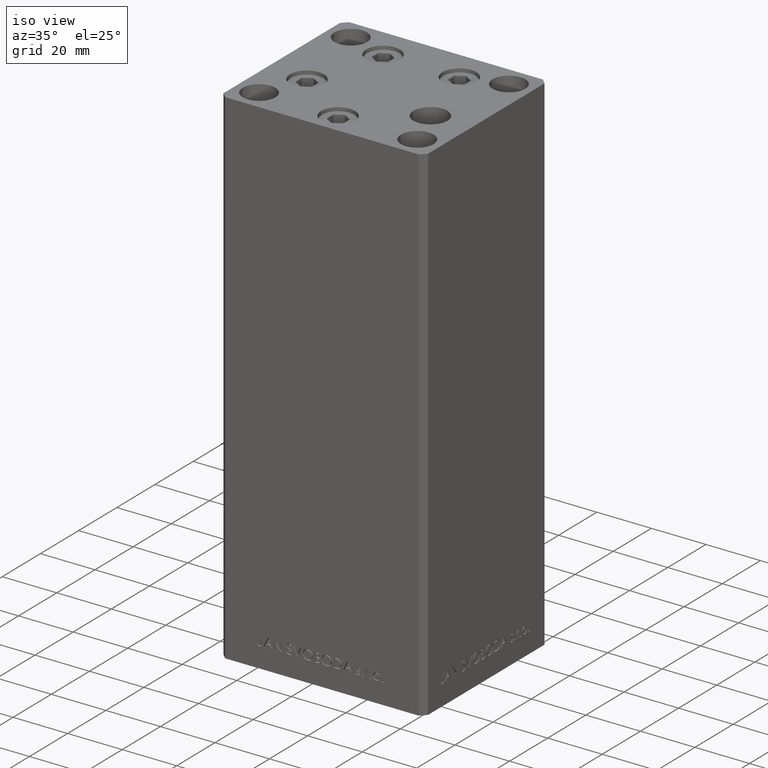
[diagram: clean part render]
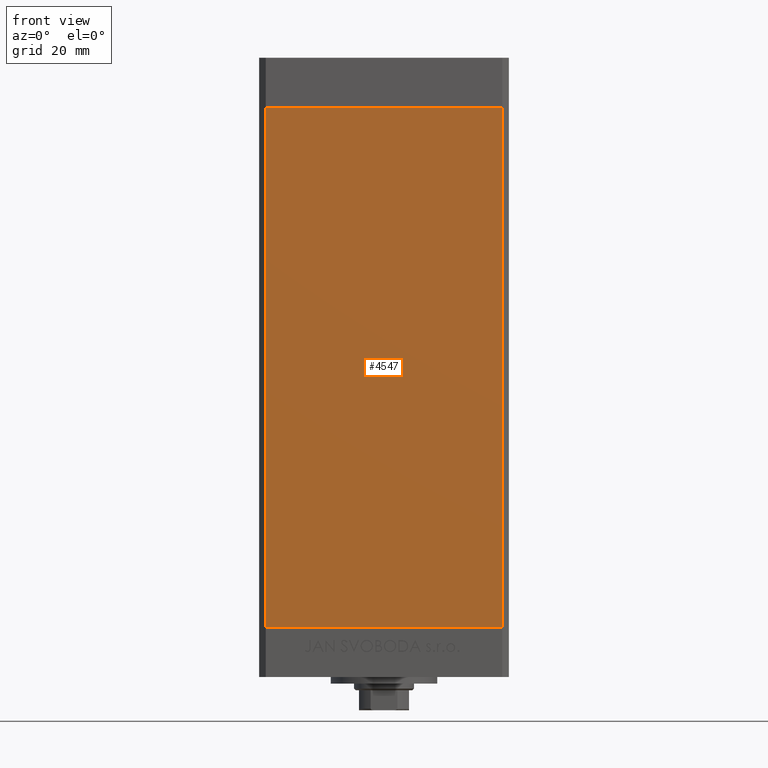
[diagram: tour spotlight — one face highlighted and labeled with its STEP entity id]
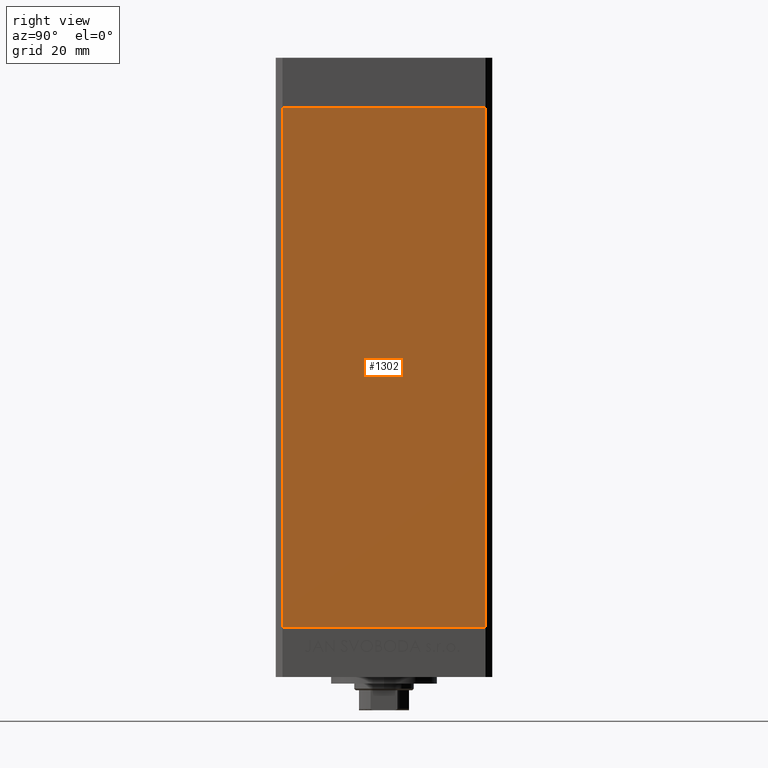
[diagram: tour spotlight — one face highlighted and labeled with its STEP entity id]
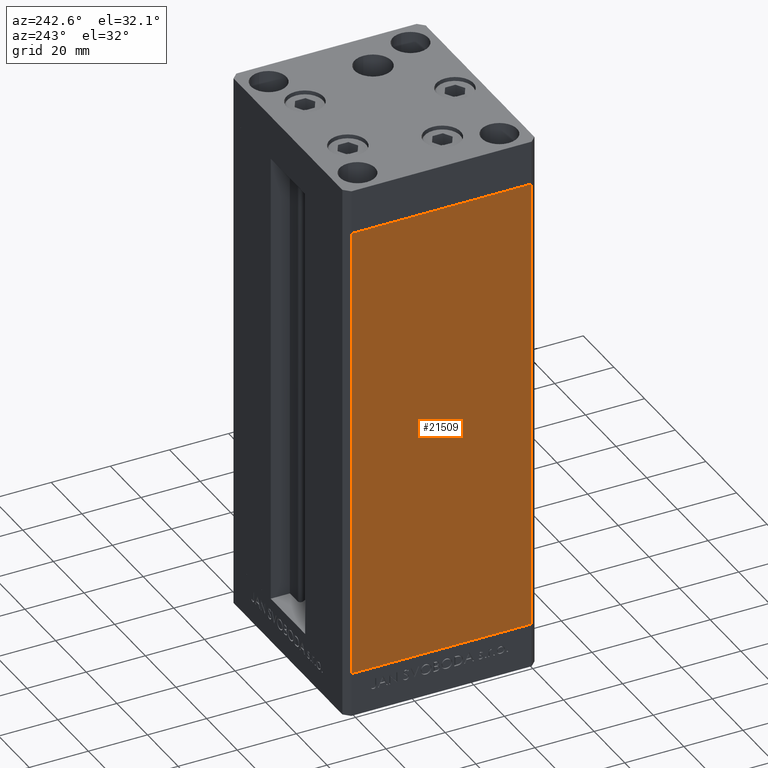
[diagram: tour spotlight — one face highlighted and labeled with its STEP entity id]
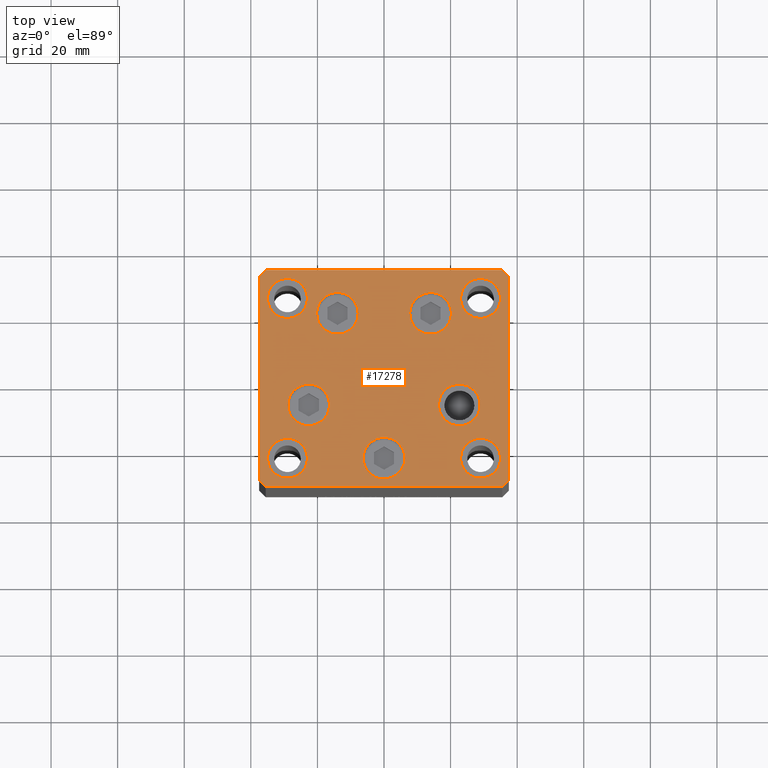
[diagram: tour spotlight — one face highlighted and labeled with its STEP entity id]
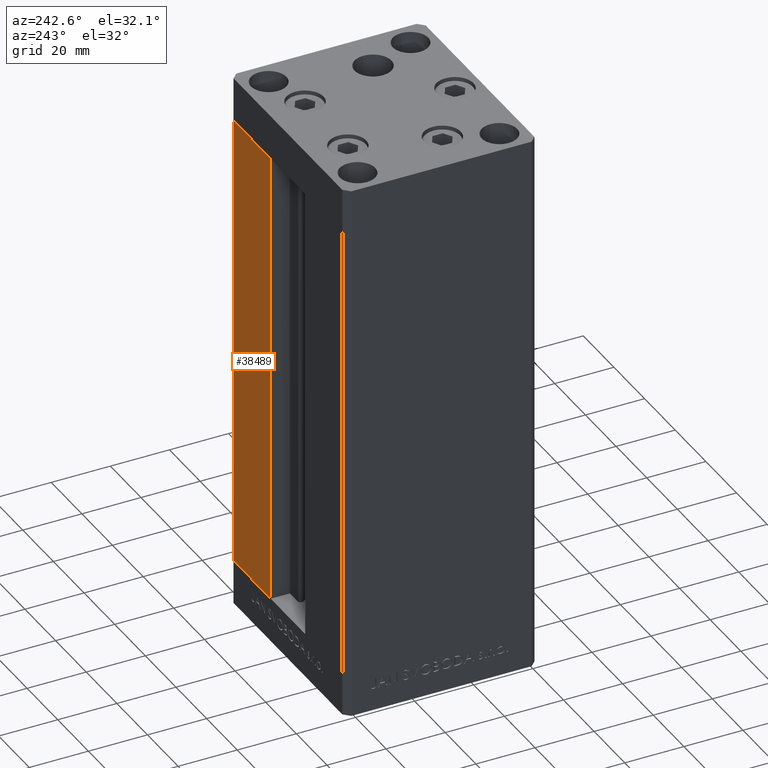
[diagram: tour spotlight — one face highlighted and labeled with its STEP entity id]
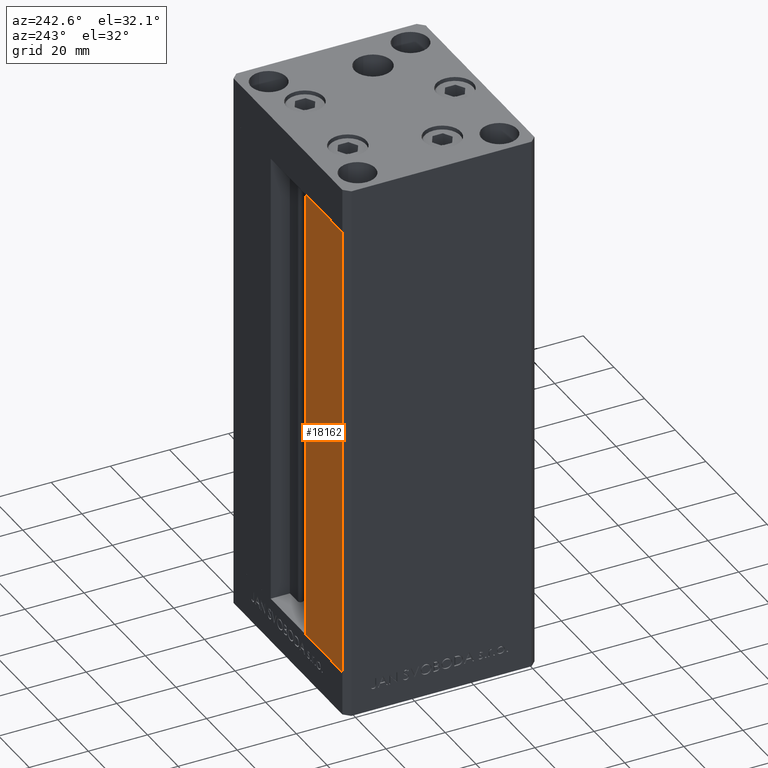
[diagram: tour spotlight — one face highlighted and labeled with its STEP entity id]
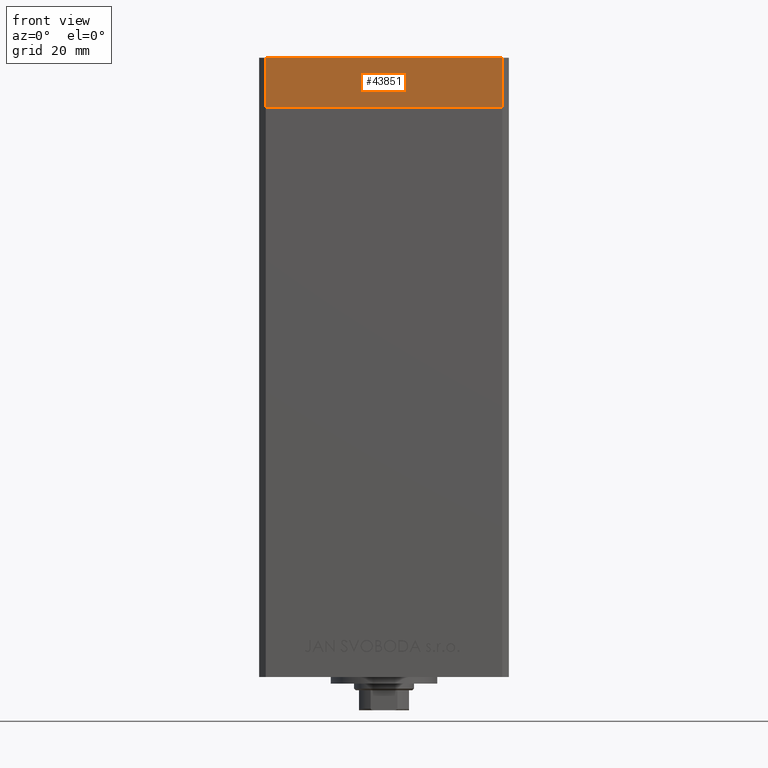
[diagram: tour spotlight — one face highlighted and labeled with its STEP entity id]
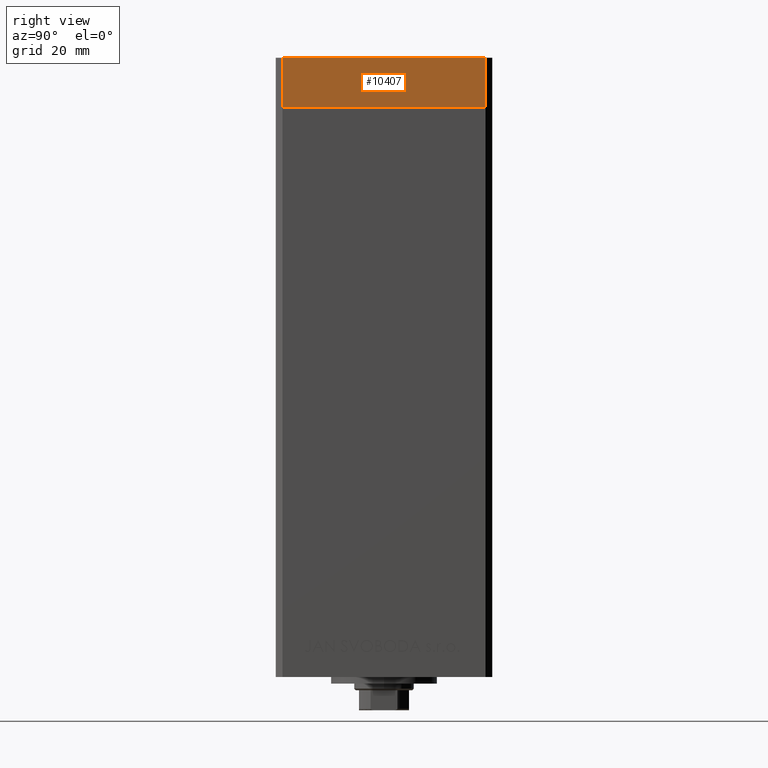
[diagram: tour spotlight — one face highlighted and labeled with its STEP entity id]
A machine part: a face-by-face anatomy tour. The part has 1159 B-rep faces; the first image is the clean iso view, then the 8 largest visible faces are spotlighted one at a time (largest first), each with its STEP entity span.

Face 1 — front view, entity #4547. In plain terms, the highlighted planar face has unit normal (0, 1, 0).
Definition (entity closure, byte-faithful):
#1800 = CARTESIAN_POINT ( 'NONE',  ( 35.49999999999999289, -32.50000000000000000, 0.000000000000000000 ) ) ;
#1874 = DIRECTION ( 'NONE',  ( 1.000000000000000000, 0.000000000000000000, 0.000000000000000000 ) ) ;
#1918 = CARTESIAN_POINT ( 'NONE',  ( -35.49999999999999289, -32.50000000000000000, 0.000000000000000000 ) ) ;
#2827 = EDGE_CURVE ( 'NONE', #21533, #44352, #17820, .T. ) ;
#2966 = LINE ( 'NONE', #44300, #48000 ) ;
#4547 = ADVANCED_FACE ( 'NONE', ( #13029 ), #47908, .F. ) ;
#5237 = EDGE_CURVE ( 'NONE', #15546, #21533, #42951, .T. ) ;
#5620 = DIRECTION ( 'NONE',  ( 0.000000000000000000, -0.000000000000000000, 1.000000000000000000 ) ) ;
#6499 = EDGE_LOOP ( 'NONE', ( #28641, #35602, #13437, #30597 ) ) ;
#8785 = EDGE_CURVE ( 'NONE', #15546, #24158, #2966, .T. ) ;
#10675 = EDGE_CURVE ( 'NONE', #24158, #44352, #26936, .T. ) ;
#12653 = CARTESIAN_POINT ( 'NONE',  ( -35.49999999999999289, -32.50000000000000000, 156.0000000000000000 ) ) ;
#13029 = FACE_OUTER_BOUND ( 'NONE', #6499, .T. ) ;
#13437 = ORIENTED_EDGE ( 'NONE', *, *, #5237, .F. ) ;
#14121 = CARTESIAN_POINT ( 'NONE',  ( 35.49999999999999289, -32.50000000000000000, 156.0000000000000000 ) ) ;
#15546 = VERTEX_POINT ( 'NONE', #12653 ) ;
#17820 = LINE ( 'NONE', #14121, #32260 ) ;
#19273 = DIRECTION ( 'NONE',  ( 1.000000000000000000, 0.000000000000000000, 0.000000000000000000 ) ) ;
#19763 = CARTESIAN_POINT ( 'NONE',  ( -35.49999999999999289, -32.50000000000000000, 0.000000000000000000 ) ) ;
#20659 = CARTESIAN_POINT ( 'NONE',  ( -35.49999999999999289, -32.50000000000000000, 156.0000000000000000 ) ) ;
#21533 = VERTEX_POINT ( 'NONE', #41022 ) ;
#24158 = VERTEX_POINT ( 'NONE', #1918 ) ;
#25948 = DIRECTION ( 'NONE',  ( -0.000000000000000000, -0.000000000000000000, -1.000000000000000000 ) ) ;
#26936 = LINE ( 'NONE', #19763, #38566 ) ;
#28641 = ORIENTED_EDGE ( 'NONE', *, *, #10675, .T. ) ;
#29039 = VECTOR ( 'NONE', #1874, 1000.000000000000000 ) ;
#30597 = ORIENTED_EDGE ( 'NONE', *, *, #8785, .T. ) ;
#32260 = VECTOR ( 'NONE', #32915, 1000.000000000000000 ) ;
#32915 = DIRECTION ( 'NONE',  ( -0.000000000000000000, -0.000000000000000000, -1.000000000000000000 ) ) ;
#35365 = AXIS2_PLACEMENT_3D ( 'NONE', #46936, #39512, #5620 ) ;
#35602 = ORIENTED_EDGE ( 'NONE', *, *, #2827, .F. ) ;
#38566 = VECTOR ( 'NONE', #19273, 1000.000000000000000 ) ;
#39512 = DIRECTION ( 'NONE',  ( 0.000000000000000000, 1.000000000000000000, 0.000000000000000000 ) ) ;
#41022 = CARTESIAN_POINT ( 'NONE',  ( 35.49999999999999289, -32.50000000000000000, 156.0000000000000000 ) ) ;
#42951 = LINE ( 'NONE', #20659, #29039 ) ;
#44300 = CARTESIAN_POINT ( 'NONE',  ( -35.49999999999999289, -32.50000000000000000, 156.0000000000000000 ) ) ;
#44352 = VERTEX_POINT ( 'NONE', #1800 ) ;
#46936 = CARTESIAN_POINT ( 'NONE',  ( -35.49999999999999289, -32.50000000000000000, 156.0000000000000000 ) ) ;
#47908 = PLANE ( 'NONE',  #35365 ) ;
#48000 = VECTOR ( 'NONE', #25948, 1000.000000000000000 ) ;

Face 2 — right view, entity #1302. In plain terms, the highlighted planar face has unit normal (1, -0, 0).
Definition (entity closure, byte-faithful):
#767 = LINE ( 'NONE', #4238, #42817 ) ;
#1302 = ADVANCED_FACE ( 'NONE', ( #36593 ), #37315, .T. ) ;
#4238 = CARTESIAN_POINT ( 'NONE',  ( 37.50000000000000711, 30.50000000000000000, 156.0000000000000000 ) ) ;
#4458 = CARTESIAN_POINT ( 'NONE',  ( 37.49999999999999289, -30.50000000000000000, 156.0000000000000000 ) ) ;
#5281 = CARTESIAN_POINT ( 'NONE',  ( 37.49999999999999289, -30.50000000000000000, 0.000000000000000000 ) ) ;
#6573 = VECTOR ( 'NONE', #15343, 1000.000000000000000 ) ;
#6875 = DIRECTION ( 'NONE',  ( 1.000000000000000000, -2.275047181608927644E-16, 0.000000000000000000 ) ) ;
#7264 = DIRECTION ( 'NONE',  ( -2.275047181608927644E-16, -1.000000000000000000, 0.000000000000000000 ) ) ;
#8632 = VERTEX_POINT ( 'NONE', #24003 ) ;
#9338 = VERTEX_POINT ( 'NONE', #28768 ) ;
#9456 = LINE ( 'NONE', #32216, #34028 ) ;
#12016 = VERTEX_POINT ( 'NONE', #15253 ) ;
#12406 = VERTEX_POINT ( 'NONE', #5281 ) ;
#15253 = CARTESIAN_POINT ( 'NONE',  ( 37.49999999999999289, -30.50000000000000000, 156.0000000000000000 ) ) ;
#15343 = DIRECTION ( 'NONE',  ( -0.000000000000000000, -0.000000000000000000, -1.000000000000000000 ) ) ;
#15848 = DIRECTION ( 'NONE',  ( -0.000000000000000000, -0.000000000000000000, -1.000000000000000000 ) ) ;
#16083 = LINE ( 'NONE', #4458, #6573 ) ;
#18005 = DIRECTION ( 'NONE',  ( 2.275047181608927644E-16, 1.000000000000000000, 0.000000000000000000 ) ) ;
#23262 = EDGE_CURVE ( 'NONE', #9338, #8632, #767, .T. ) ;
#23715 = ORIENTED_EDGE ( 'NONE', *, *, #44336, .T. ) ;
#24003 = CARTESIAN_POINT ( 'NONE',  ( 37.50000000000000711, 30.50000000000000000, 0.000000000000000000 ) ) ;
#27466 = EDGE_CURVE ( 'NONE', #12016, #12406, #16083, .T. ) ;
#28768 = CARTESIAN_POINT ( 'NONE',  ( 37.50000000000000711, 30.50000000000000000, 156.0000000000000000 ) ) ;
#29840 = ORIENTED_EDGE ( 'NONE', *, *, #27466, .T. ) ;
#32216 = CARTESIAN_POINT ( 'NONE',  ( 37.50000000000000711, 30.50000000000000000, 156.0000000000000000 ) ) ;
#32488 = ORIENTED_EDGE ( 'NONE', *, *, #34269, .F. ) ;
#33588 = CARTESIAN_POINT ( 'NONE',  ( 37.50000000000000711, 30.50000000000000000, 156.0000000000000000 ) ) ;
#34028 = VECTOR ( 'NONE', #46823, 1000.000000000000000 ) ;
#34269 = EDGE_CURVE ( 'NONE', #8632, #12406, #37202, .T. ) ;
#36593 = FACE_OUTER_BOUND ( 'NONE', #39290, .T. ) ;
#36698 = VECTOR ( 'NONE', #7264, 1000.000000000000000 ) ;
#36728 = CARTESIAN_POINT ( 'NONE',  ( 37.50000000000000711, 30.50000000000000000, 0.000000000000000000 ) ) ;
#37202 = LINE ( 'NONE', #36728, #36698 ) ;
#37315 = PLANE ( 'NONE',  #40918 ) ;
#39290 = EDGE_LOOP ( 'NONE', ( #32488, #41556, #23715, #29840 ) ) ;
#40918 = AXIS2_PLACEMENT_3D ( 'NONE', #33588, #6875, #18005 ) ;
#41556 = ORIENTED_EDGE ( 'NONE', *, *, #23262, .F. ) ;
#42817 = VECTOR ( 'NONE', #15848, 1000.000000000000000 ) ;
#44336 = EDGE_CURVE ( 'NONE', #9338, #12016, #9456, .T. ) ;
#46823 = DIRECTION ( 'NONE',  ( -2.275047181608927644E-16, -1.000000000000000000, 0.000000000000000000 ) ) ;

Face 3 — auxiliary view, entity #21509. In plain terms, the highlighted planar face has unit normal (1, 0, 0).
Definition (entity closure, byte-faithful):
#643 = CARTESIAN_POINT ( 'NONE',  ( -37.50000000000000711, 30.50000000000000000, 156.0000000000000000 ) ) ;
#985 = CARTESIAN_POINT ( 'NONE',  ( -37.49999999999999289, -30.50000000000000000, 156.0000000000000000 ) ) ;
#2535 = CARTESIAN_POINT ( 'NONE',  ( -37.50000000000000711, 30.50000000000000000, 0.000000000000000000 ) ) ;
#4201 = LINE ( 'NONE', #985, #27714 ) ;
#4476 = VERTEX_POINT ( 'NONE', #27884 ) ;
#4745 = VERTEX_POINT ( 'NONE', #45424 ) ;
#4853 = DIRECTION ( 'NONE',  ( 2.275047181608927644E-16, -1.000000000000000000, 0.000000000000000000 ) ) ;
#5172 = EDGE_CURVE ( 'NONE', #19565, #4745, #19425, .T. ) ;
#6062 = LINE ( 'NONE', #12742, #11987 ) ;
#6156 = DIRECTION ( 'NONE',  ( -2.275047181608927644E-16, 1.000000000000000000, 0.000000000000000000 ) ) ;
#10817 = FACE_OUTER_BOUND ( 'NONE', #35057, .T. ) ;
#11987 = VECTOR ( 'NONE', #35035, 1000.000000000000000 ) ;
#12742 = CARTESIAN_POINT ( 'NONE',  ( -37.50000000000000711, 30.50000000000000000, 156.0000000000000000 ) ) ;
#12835 = ORIENTED_EDGE ( 'NONE', *, *, #26880, .T. ) ;
#14626 = LINE ( 'NONE', #2535, #44289 ) ;
#15004 = CARTESIAN_POINT ( 'NONE',  ( -37.50000000000000711, 30.50000000000000000, 156.0000000000000000 ) ) ;
#18248 = DIRECTION ( 'NONE',  ( 1.000000000000000000, 2.275047181608927644E-16, -0.000000000000000000 ) ) ;
#18475 = ORIENTED_EDGE ( 'NONE', *, *, #43618, .T. ) ;
#19425 = LINE ( 'NONE', #643, #23479 ) ;
#19565 = VERTEX_POINT ( 'NONE', #15004 ) ;
#21199 = EDGE_CURVE ( 'NONE', #4745, #4476, #4201, .T. ) ;
#21317 = DIRECTION ( 'NONE',  ( 2.275047181608927644E-16, -1.000000000000000000, 0.000000000000000000 ) ) ;
#21509 = ADVANCED_FACE ( 'NONE', ( #10817 ), #40771, .F. ) ;
#23472 = ORIENTED_EDGE ( 'NONE', *, *, #5172, .F. ) ;
#23479 = VECTOR ( 'NONE', #4853, 1000.000000000000000 ) ;
#26880 = EDGE_CURVE ( 'NONE', #19565, #27081, #6062, .T. ) ;
#27081 = VERTEX_POINT ( 'NONE', #34221 ) ;
#27714 = VECTOR ( 'NONE', #41562, 1000.000000000000000 ) ;
#27884 = CARTESIAN_POINT ( 'NONE',  ( -37.49999999999999289, -30.50000000000000000, 0.000000000000000000 ) ) ;
#34221 = CARTESIAN_POINT ( 'NONE',  ( -37.50000000000000711, 30.50000000000000000, 0.000000000000000000 ) ) ;
#35035 = DIRECTION ( 'NONE',  ( -0.000000000000000000, -0.000000000000000000, -1.000000000000000000 ) ) ;
#35057 = EDGE_LOOP ( 'NONE', ( #18475, #35601, #23472, #12835 ) ) ;
#35601 = ORIENTED_EDGE ( 'NONE', *, *, #21199, .F. ) ;
#40048 = CARTESIAN_POINT ( 'NONE',  ( -37.50000000000000711, 30.50000000000000000, 156.0000000000000000 ) ) ;
#40771 = PLANE ( 'NONE',  #44341 ) ;
#41562 = DIRECTION ( 'NONE',  ( -0.000000000000000000, -0.000000000000000000, -1.000000000000000000 ) ) ;
#43618 = EDGE_CURVE ( 'NONE', #27081, #4476, #14626, .T. ) ;
#44289 = VECTOR ( 'NONE', #21317, 1000.000000000000000 ) ;
#44341 = AXIS2_PLACEMENT_3D ( 'NONE', #40048, #18248, #6156 ) ;
#45424 = CARTESIAN_POINT ( 'NONE',  ( -37.49999999999999289, -30.50000000000000000, 156.0000000000000000 ) ) ;

Face 4 — top view, entity #17278. In plain terms, the highlighted planar face has unit normal (0, 0, 1).
Definition (entity closure, byte-faithful):
#153 = ORIENTED_EDGE ( 'NONE', *, *, #41121, .F. ) ;
#272 = EDGE_CURVE ( 'NONE', #9635, #35652, #22664, .T. ) ;
#481 = CARTESIAN_POINT ( 'NONE',  ( -37.49999999999998579, -30.50000000000001421, 0.000000000000000000 ) ) ;
#574 = CIRCLE ( 'NONE', #2955, 6.250000000000001776 ) ;
#1024 = AXIS2_PLACEMENT_3D ( 'NONE', #3784, #18858, #41146 ) ;
#1362 = AXIS2_PLACEMENT_3D ( 'NONE', #2921, #29390, #26151 ) ;
#2127 = VERTEX_POINT ( 'NONE', #21053 ) ;
#2206 = CIRCLE ( 'NONE', #19544, 6.250000000000000000 ) ;
#2354 = ORIENTED_EDGE ( 'NONE', *, *, #272, .T. ) ;
#2501 = CARTESIAN_POINT ( 'NONE',  ( -7.741068579633227031, 19.49999999999999645, 0.000000000000000000 ) ) ;
#2624 = CARTESIAN_POINT ( 'NONE',  ( 23.00000000000001066, -23.99999999999999289, 0.000000000000000000 ) ) ;
#2730 = DIRECTION ( 'NONE',  ( 1.000000000000000000, 0.000000000000000000, 0.000000000000000000 ) ) ;
#2809 = ORIENTED_EDGE ( 'NONE', *, *, #28008, .T. ) ;
#2921 = CARTESIAN_POINT ( 'NONE',  ( -13.99106857963322703, 19.49999999999999645, 0.000000000000000000 ) ) ;
#2955 = AXIS2_PLACEMENT_3D ( 'NONE', #44563, #3474, #30419 ) ;
#2990 = VERTEX_POINT ( 'NONE', #5186 ) ;
#3189 = PLANE ( 'NONE',  #29175 ) ;
#3236 = EDGE_LOOP ( 'NONE', ( #32721, #5008 ) ) ;
#3275 = EDGE_CURVE ( 'NONE', #38690, #3716, #3800, .T. ) ;
#3474 = DIRECTION ( 'NONE',  ( 0.000000000000000000, -0.000000000000000000, -1.000000000000000000 ) ) ;
#3669 = FACE_BOUND ( 'NONE', #14991, .T. ) ;
#3716 = VERTEX_POINT ( 'NONE', #21779 ) ;
#3784 = CARTESIAN_POINT ( 'NONE',  ( 29.00000000000001066, -23.99999999999999289, 0.000000000000000000 ) ) ;
#3800 = CIRCLE ( 'NONE', #30667, 6.250000000000000000 ) ;
#4153 = LINE ( 'NONE', #18502, #47623 ) ;
#4156 = FACE_OUTER_BOUND ( 'NONE', #23304, .T. ) ;
#4196 = CARTESIAN_POINT ( 'NONE',  ( 7.741068579633223479, 19.50000000000000000, 0.000000000000000000 ) ) ;
#4229 = DIRECTION ( 'NONE',  ( 4.550094363217855288E-16, -1.000000000000000000, 0.000000000000000000 ) ) ;
#4471 = DIRECTION ( 'NONE',  ( 1.000000000000000000, 0.000000000000000000, 0.000000000000000000 ) ) ;
#4685 = AXIS2_PLACEMENT_3D ( 'NONE', #18031, #6190, #2730 ) ;
#4943 = EDGE_LOOP ( 'NONE', ( #2809, #46846 ) ) ;
#5008 = ORIENTED_EDGE ( 'NONE', *, *, #17722, .F. ) ;
#5055 = CARTESIAN_POINT ( 'NONE',  ( -35.49999999999998579, -32.50000000000001421, 0.000000000000000000 ) ) ;
#5186 = CARTESIAN_POINT ( 'NONE',  ( -28.87741699796952233, -8.000000000000005329, 0.000000000000000000 ) ) ;
#5587 = DIRECTION ( 'NONE',  ( 0.000000000000000000, -0.000000000000000000, -1.000000000000000000 ) ) ;
#5617 = VERTEX_POINT ( 'NONE', #30285 ) ;
#5858 = VERTEX_POINT ( 'NONE', #33326 ) ;
#6190 = DIRECTION ( 'NONE',  ( 0.000000000000000000, 0.000000000000000000, 1.000000000000000000 ) ) ;
#6216 = LINE ( 'NONE', #27738, #35395 ) ;
#6297 = CIRCLE ( 'NONE', #48177, 6.000000000000005329 ) ;
#6444 = EDGE_CURVE ( 'NONE', #45996, #5858, #31328, .T. ) ;
#6586 = ORIENTED_EDGE ( 'NONE', *, *, #8454, .F. ) ;
#6762 = ORIENTED_EDGE ( 'NONE', *, *, #24481, .T. ) ;
#6862 = VERTEX_POINT ( 'NONE', #33628 ) ;
#6865 = CARTESIAN_POINT ( 'NONE',  ( 6.250000000000002665, -24.00000000000000000, 0.000000000000000000 ) ) ;
#6958 = CARTESIAN_POINT ( 'NONE',  ( -23.00000000000001421, -23.99999999999999289, 0.000000000000000000 ) ) ;
#7143 = ORIENTED_EDGE ( 'NONE', *, *, #3275, .T. ) ;
#7808 = DIRECTION ( 'NONE',  ( 1.000000000000000000, 0.000000000000000000, 0.000000000000000000 ) ) ;
#7833 = EDGE_CURVE ( 'NONE', #6862, #30452, #31310, .T. ) ;
#7920 = DIRECTION ( 'NONE',  ( 1.000000000000000000, 0.000000000000000000, 0.000000000000000000 ) ) ;
#8201 = ORIENTED_EDGE ( 'NONE', *, *, #40747, .F. ) ;
#8454 = EDGE_CURVE ( 'NONE', #40731, #47988, #9253, .T. ) ;
#8507 = DIRECTION ( 'NONE',  ( 0.000000000000000000, -0.000000000000000000, -1.000000000000000000 ) ) ;
#8572 = VERTEX_POINT ( 'NONE', #34664 ) ;
#8762 = CARTESIAN_POINT ( 'NONE',  ( 37.49999999999992184, 30.50000000000001066, 0.000000000000000000 ) ) ;
#8814 = EDGE_CURVE ( 'NONE', #30121, #5617, #13851, .T. ) ;
#9253 = CIRCLE ( 'NONE', #40063, 5.999999999999998224 ) ;
#9269 = EDGE_LOOP ( 'NONE', ( #6586, #153 ) ) ;
#9396 = VECTOR ( 'NONE', #21642, 999.9999999999998863 ) ;
#9635 = VERTEX_POINT ( 'NONE', #2501 ) ;
#10143 = DIRECTION ( 'NONE',  ( 0.7071067811865487940, 0.7071067811865463515, 0.000000000000000000 ) ) ;
#10271 = VERTEX_POINT ( 'NONE', #21161 ) ;
#10422 = CIRCLE ( 'NONE', #28608, 5.999999999999998224 ) ;
#10558 = EDGE_CURVE ( 'NONE', #5617, #35109, #6216, .T. ) ;
#10970 = CARTESIAN_POINT ( 'NONE',  ( 13.99106857963322348, 19.50000000000000000, 0.000000000000000000 ) ) ;
#11079 = ORIENTED_EDGE ( 'NONE', *, *, #45328, .F. ) ;
#11572 = AXIS2_PLACEMENT_3D ( 'NONE', #35221, #31506, #12687 ) ;
#11636 = VECTOR ( 'NONE', #47596, 1000.000000000000000 ) ;
#12304 = EDGE_CURVE ( 'NONE', #35109, #6862, #36509, .T. ) ;
#12360 = CARTESIAN_POINT ( 'NONE',  ( 2.939152317953647500E-15, -24.00000000000000000, 0.000000000000000000 ) ) ;
#12557 = EDGE_LOOP ( 'NONE', ( #31912, #22378 ) ) ;
#12642 = DIRECTION ( 'NONE',  ( -1.478780668045802821E-15, 1.000000000000000000, 0.000000000000000000 ) ) ;
#12687 = DIRECTION ( 'NONE',  ( 1.000000000000000000, 0.000000000000000000, 0.000000000000000000 ) ) ;
#12847 = DIRECTION ( 'NONE',  ( 1.000000000000000000, 0.000000000000000000, 0.000000000000000000 ) ) ;
#13258 = EDGE_CURVE ( 'NONE', #35652, #9635, #2206, .T. ) ;
#13359 = EDGE_CURVE ( 'NONE', #8572, #30121, #32246, .T. ) ;
#13405 = DIRECTION ( 'NONE',  ( 0.000000000000000000, 0.000000000000000000, 1.000000000000000000 ) ) ;
#13851 = LINE ( 'NONE', #28939, #40868 ) ;
#13975 = CARTESIAN_POINT ( 'NONE',  ( 37.49999999999992184, 30.50000000000001066, 0.000000000000000000 ) ) ;
#14179 = CIRCLE ( 'NONE', #4685, 5.999999999999998224 ) ;
#14755 = CARTESIAN_POINT ( 'NONE',  ( -29.00000000000001066, -23.99999999999999289, 0.000000000000000000 ) ) ;
#14991 = EDGE_LOOP ( 'NONE', ( #35371, #40122 ) ) ;
#15031 = CARTESIAN_POINT ( 'NONE',  ( 2.939152317953647500E-15, -24.00000000000000000, 0.000000000000000000 ) ) ;
#15037 = CARTESIAN_POINT ( 'NONE',  ( 0.000000000000000000, 0.000000000000000000, 0.000000000000000000 ) ) ;
#15090 = AXIS2_PLACEMENT_3D ( 'NONE', #45801, #45554, #4471 ) ;
#15518 = FACE_BOUND ( 'NONE', #3236, .T. ) ;
#15708 = CIRCLE ( 'NONE', #40238, 6.250000000000001776 ) ;
#15725 = CARTESIAN_POINT ( 'NONE',  ( 35.49999999999992184, 32.50000000000000711, 0.000000000000000000 ) ) ;
#16937 = EDGE_CURVE ( 'NONE', #2990, #19179, #15708, .T. ) ;
#17278 = ADVANCED_FACE ( 'NONE', ( #22455, #22939, #37557, #48929, #3669, #15518, #38041, #21968, #33837, #4156 ), #3189, .T. ) ;
#17391 = CIRCLE ( 'NONE', #37172, 6.250000000000001776 ) ;
#17639 = ORIENTED_EDGE ( 'NONE', *, *, #7833, .T. ) ;
#17659 = EDGE_LOOP ( 'NONE', ( #32247, #2354 ) ) ;
#17722 = EDGE_CURVE ( 'NONE', #42860, #2127, #6297, .T. ) ;
#18031 = CARTESIAN_POINT ( 'NONE',  ( -29.00000000000001066, 24.00000000000000711, 0.000000000000000000 ) ) ;
#18124 = AXIS2_PLACEMENT_3D ( 'NONE', #29843, #45195, #7808 ) ;
#18202 = EDGE_LOOP ( 'NONE', ( #35960, #11079 ) ) ;
#18225 = DIRECTION ( 'NONE',  ( 1.000000000000000000, 0.000000000000000000, 0.000000000000000000 ) ) ;
#18351 = AXIS2_PLACEMENT_3D ( 'NONE', #10970, #26057, #34228 ) ;
#18502 = CARTESIAN_POINT ( 'NONE',  ( -35.50000000000002842, 32.49999999999999289, 0.000000000000000000 ) ) ;
#18833 = CARTESIAN_POINT ( 'NONE',  ( -29.00000000000001066, 24.00000000000000711, 0.000000000000000000 ) ) ;
#18858 = DIRECTION ( 'NONE',  ( 0.000000000000000000, 0.000000000000000000, 1.000000000000000000 ) ) ;
#18996 = CARTESIAN_POINT ( 'NONE',  ( 16.37741699796951877, -8.000000000000000000, 0.000000000000000000 ) ) ;
#19179 = VERTEX_POINT ( 'NONE', #47753 ) ;
#19279 = LINE ( 'NONE', #481, #24299 ) ;
#19544 = AXIS2_PLACEMENT_3D ( 'NONE', #23838, #8507, #25895 ) ;
#19847 = EDGE_CURVE ( 'NONE', #10271, #36048, #26890, .T. ) ;
#20037 = ORIENTED_EDGE ( 'NONE', *, *, #36900, .T. ) ;
#20671 = CIRCLE ( 'NONE', #23024, 6.250000000000000000 ) ;
#20912 = DIRECTION ( 'NONE',  ( 1.000000000000000000, 0.000000000000000000, 0.000000000000000000 ) ) ;
#21053 = CARTESIAN_POINT ( 'NONE',  ( 35.00000000000001421, -23.99999999999999289, 0.000000000000000000 ) ) ;
#21161 = CARTESIAN_POINT ( 'NONE',  ( 20.24106857963322526, 19.50000000000000000, 0.000000000000000000 ) ) ;
#21642 = DIRECTION ( 'NONE',  ( -0.7071067811865482389, 0.7071067811865469066, 0.000000000000000000 ) ) ;
#21779 = CARTESIAN_POINT ( 'NONE',  ( -6.249999999999997335, -24.00000000000000000, 0.000000000000000000 ) ) ;
#21932 = DIRECTION ( 'NONE',  ( 0.000000000000000000, 0.000000000000000000, 1.000000000000000000 ) ) ;
#21968 = FACE_BOUND ( 'NONE', #9269, .T. ) ;
#22085 = ORIENTED_EDGE ( 'NONE', *, *, #46615, .T. ) ;
#22217 = CIRCLE ( 'NONE', #15090, 5.999999999999998224 ) ;
#22378 = ORIENTED_EDGE ( 'NONE', *, *, #27496, .T. ) ;
#22455 = FACE_BOUND ( 'NONE', #17659, .T. ) ;
#22554 = CARTESIAN_POINT ( 'NONE',  ( -20.24106857963322881, 19.49999999999999645, 0.000000000000000000 ) ) ;
#22664 = CIRCLE ( 'NONE', #1362, 6.250000000000000000 ) ;
#22939 = FACE_BOUND ( 'NONE', #4943, .T. ) ;
#23024 = AXIS2_PLACEMENT_3D ( 'NONE', #12360, #35883, #27457 ) ;
#23267 = DIRECTION ( 'NONE',  ( 0.000000000000000000, 0.000000000000000000, 1.000000000000000000 ) ) ;
#23304 = EDGE_LOOP ( 'NONE', ( #20037, #30784, #30682, #38612, #29728, #17639, #6762, #48602 ) ) ;
#23628 = EDGE_CURVE ( 'NONE', #25349, #32310, #10422, .T. ) ;
#23721 = AXIS2_PLACEMENT_3D ( 'NONE', #35527, #5587, #20912 ) ;
#23838 = CARTESIAN_POINT ( 'NONE',  ( -13.99106857963322703, 19.49999999999999645, 0.000000000000000000 ) ) ;
#24211 = DIRECTION ( 'NONE',  ( 0.000000000000000000, -0.000000000000000000, -1.000000000000000000 ) ) ;
#24299 = VECTOR ( 'NONE', #30918, 1000.000000000000114 ) ;
#24481 = EDGE_CURVE ( 'NONE', #30452, #37939, #4153, .T. ) ;
#24673 = VECTOR ( 'NONE', #4229, 1000.000000000000000 ) ;
#25349 = VERTEX_POINT ( 'NONE', #6958 ) ;
#25895 = DIRECTION ( 'NONE',  ( 1.000000000000000000, 0.000000000000000000, 0.000000000000000000 ) ) ;
#26057 = DIRECTION ( 'NONE',  ( 0.000000000000000000, -0.000000000000000000, -1.000000000000000000 ) ) ;
#26151 = DIRECTION ( 'NONE',  ( 1.000000000000000000, 0.000000000000000000, 0.000000000000000000 ) ) ;
#26890 = CIRCLE ( 'NONE', #23721, 6.250000000000000000 ) ;
#26901 = CARTESIAN_POINT ( 'NONE',  ( 28.87741699796952233, -8.000000000000000000, 0.000000000000000000 ) ) ;
#26996 = AXIS2_PLACEMENT_3D ( 'NONE', #38111, #41829, #7920 ) ;
#27438 = CARTESIAN_POINT ( 'NONE',  ( -22.62741699796951877, -8.000000000000005329, 0.000000000000000000 ) ) ;
#27457 = DIRECTION ( 'NONE',  ( 1.000000000000000000, 0.000000000000000000, 0.000000000000000000 ) ) ;
#27496 = EDGE_CURVE ( 'NONE', #40340, #40359, #36491, .T. ) ;
#27738 = CARTESIAN_POINT ( 'NONE',  ( 37.50000000000001421, -30.50000000000000711, 0.000000000000000000 ) ) ;
#28008 = EDGE_CURVE ( 'NONE', #36048, #10271, #39709, .T. ) ;
#28374 = EDGE_CURVE ( 'NONE', #37939, #45803, #30696, .T. ) ;
#28608 = AXIS2_PLACEMENT_3D ( 'NONE', #14755, #21932, #18225 ) ;
#28717 = EDGE_LOOP ( 'NONE', ( #22085, #7143 ) ) ;
#28939 = CARTESIAN_POINT ( 'NONE',  ( 35.50000000000000711, -32.50000000000000711, 0.000000000000000000 ) ) ;
#29175 = AXIS2_PLACEMENT_3D ( 'NONE', #15037, #34334, #45241 ) ;
#29390 = DIRECTION ( 'NONE',  ( 0.000000000000000000, -0.000000000000000000, -1.000000000000000000 ) ) ;
#29728 = ORIENTED_EDGE ( 'NONE', *, *, #12304, .T. ) ;
#29843 = CARTESIAN_POINT ( 'NONE',  ( 29.00000000000001066, 24.00000000000000711, 0.000000000000000000 ) ) ;
#29971 = CIRCLE ( 'NONE', #18124, 6.000000000000005329 ) ;
#30056 = ORIENTED_EDGE ( 'NONE', *, *, #6444, .F. ) ;
#30121 = VERTEX_POINT ( 'NONE', #48615 ) ;
#30269 = CIRCLE ( 'NONE', #1024, 6.000000000000005329 ) ;
#30285 = CARTESIAN_POINT ( 'NONE',  ( 37.50000000000001421, -30.50000000000000711, 0.000000000000000000 ) ) ;
#30409 = EDGE_CURVE ( 'NONE', #2127, #42860, #30269, .T. ) ;
#30419 = DIRECTION ( 'NONE',  ( 1.000000000000000000, 0.000000000000000000, 0.000000000000000000 ) ) ;
#30452 = VERTEX_POINT ( 'NONE', #44624 ) ;
#30458 = DIRECTION ( 'NONE',  ( 1.000000000000000000, 0.000000000000000000, 0.000000000000000000 ) ) ;
#30613 = DIRECTION ( 'NONE',  ( -0.7071067811865426878, -0.7071067811865524577, 0.000000000000000000 ) ) ;
#30667 = AXIS2_PLACEMENT_3D ( 'NONE', #15031, #41514, #37790 ) ;
#30682 = ORIENTED_EDGE ( 'NONE', *, *, #8814, .T. ) ;
#30696 = LINE ( 'NONE', #42322, #24673 ) ;
#30784 = ORIENTED_EDGE ( 'NONE', *, *, #13359, .T. ) ;
#30918 = DIRECTION ( 'NONE',  ( 0.7071067811865474617, -0.7071067811865474617, 0.000000000000000000 ) ) ;
#31236 = CARTESIAN_POINT ( 'NONE',  ( 29.00000000000001066, -23.99999999999999289, 0.000000000000000000 ) ) ;
#31310 = LINE ( 'NONE', #15725, #47147 ) ;
#31328 = CIRCLE ( 'NONE', #11572, 6.000000000000005329 ) ;
#31483 = DIRECTION ( 'NONE',  ( 1.000000000000000000, 0.000000000000000000, 0.000000000000000000 ) ) ;
#31506 = DIRECTION ( 'NONE',  ( 0.000000000000000000, 0.000000000000000000, 1.000000000000000000 ) ) ;
#31912 = ORIENTED_EDGE ( 'NONE', *, *, #36004, .T. ) ;
#32239 = DIRECTION ( 'NONE',  ( 1.000000000000000000, 0.000000000000000000, 0.000000000000000000 ) ) ;
#32246 = LINE ( 'NONE', #5055, #11636 ) ;
#32247 = ORIENTED_EDGE ( 'NONE', *, *, #13258, .T. ) ;
#32310 = VERTEX_POINT ( 'NONE', #35933 ) ;
#32358 = CARTESIAN_POINT ( 'NONE',  ( -35.00000000000000711, 24.00000000000000711, 0.000000000000000000 ) ) ;
#32721 = ORIENTED_EDGE ( 'NONE', *, *, #30409, .F. ) ;
#33326 = CARTESIAN_POINT ( 'NONE',  ( 35.00000000000001421, 24.00000000000000711, 0.000000000000000000 ) ) ;
#33628 = CARTESIAN_POINT ( 'NONE',  ( 35.49999999999992184, 32.50000000000000711, 0.000000000000000000 ) ) ;
#33837 = FACE_BOUND ( 'NONE', #38288, .T. ) ;
#34228 = DIRECTION ( 'NONE',  ( 1.000000000000000000, 0.000000000000000000, 0.000000000000000000 ) ) ;
#34334 = DIRECTION ( 'NONE',  ( -0.000000000000000000, 0.000000000000000000, 1.000000000000000000 ) ) ;
#34664 = CARTESIAN_POINT ( 'NONE',  ( -35.49999999999998579, -32.50000000000001421, 0.000000000000000000 ) ) ;
#35109 = VERTEX_POINT ( 'NONE', #8762 ) ;
#35221 = CARTESIAN_POINT ( 'NONE',  ( 29.00000000000001066, 24.00000000000000711, 0.000000000000000000 ) ) ;
#35371 = ORIENTED_EDGE ( 'NONE', *, *, #16937, .T. ) ;
#35395 = VECTOR ( 'NONE', #12642, 1000.000000000000000 ) ;
#35527 = CARTESIAN_POINT ( 'NONE',  ( 13.99106857963322348, 19.50000000000000000, 0.000000000000000000 ) ) ;
#35652 = VERTEX_POINT ( 'NONE', #22554 ) ;
#35883 = DIRECTION ( 'NONE',  ( 0.000000000000000000, -0.000000000000000000, -1.000000000000000000 ) ) ;
#35933 = CARTESIAN_POINT ( 'NONE',  ( -35.00000000000000711, -23.99999999999999289, 0.000000000000000000 ) ) ;
#35960 = ORIENTED_EDGE ( 'NONE', *, *, #23628, .F. ) ;
#36004 = EDGE_CURVE ( 'NONE', #40359, #40340, #574, .T. ) ;
#36048 = VERTEX_POINT ( 'NONE', #4196 ) ;
#36491 = CIRCLE ( 'NONE', #26996, 6.250000000000001776 ) ;
#36509 = LINE ( 'NONE', #13975, #9396 ) ;
#36900 = EDGE_CURVE ( 'NONE', #45803, #8572, #19279, .T. ) ;
#37172 = AXIS2_PLACEMENT_3D ( 'NONE', #47822, #43389, #32239 ) ;
#37557 = FACE_BOUND ( 'NONE', #12557, .T. ) ;
#37790 = DIRECTION ( 'NONE',  ( 1.000000000000000000, 0.000000000000000000, 0.000000000000000000 ) ) ;
#37939 = VERTEX_POINT ( 'NONE', #43843 ) ;
#38041 = FACE_BOUND ( 'NONE', #18202, .T. ) ;
#38111 = CARTESIAN_POINT ( 'NONE',  ( 22.62741699796951877, -8.000000000000000000, 0.000000000000000000 ) ) ;
#38288 = EDGE_LOOP ( 'NONE', ( #8201, #30056 ) ) ;
#38612 = ORIENTED_EDGE ( 'NONE', *, *, #10558, .T. ) ;
#38690 = VERTEX_POINT ( 'NONE', #6865 ) ;
#39709 = CIRCLE ( 'NONE', #18351, 6.250000000000000000 ) ;
#39945 = CARTESIAN_POINT ( 'NONE',  ( -37.49999999999998579, -30.50000000000001421, 0.000000000000000000 ) ) ;
#40063 = AXIS2_PLACEMENT_3D ( 'NONE', #18833, #23267, #30458 ) ;
#40122 = ORIENTED_EDGE ( 'NONE', *, *, #43045, .T. ) ;
#40238 = AXIS2_PLACEMENT_3D ( 'NONE', #27438, #24211, #12847 ) ;
#40340 = VERTEX_POINT ( 'NONE', #26901 ) ;
#40359 = VERTEX_POINT ( 'NONE', #18996 ) ;
#40731 = VERTEX_POINT ( 'NONE', #41713 ) ;
#40747 = EDGE_CURVE ( 'NONE', #5858, #45996, #29971, .T. ) ;
#40868 = VECTOR ( 'NONE', #10143, 1000.000000000000000 ) ;
#41121 = EDGE_CURVE ( 'NONE', #47988, #40731, #14179, .T. ) ;
#41146 = DIRECTION ( 'NONE',  ( 1.000000000000000000, 0.000000000000000000, 0.000000000000000000 ) ) ;
#41514 = DIRECTION ( 'NONE',  ( 0.000000000000000000, -0.000000000000000000, -1.000000000000000000 ) ) ;
#41713 = CARTESIAN_POINT ( 'NONE',  ( -23.00000000000001421, 24.00000000000000711, 0.000000000000000000 ) ) ;
#41829 = DIRECTION ( 'NONE',  ( 0.000000000000000000, -0.000000000000000000, -1.000000000000000000 ) ) ;
#42322 = CARTESIAN_POINT ( 'NONE',  ( -37.50000000000001421, 30.49999999999998579, 0.000000000000000000 ) ) ;
#42860 = VERTEX_POINT ( 'NONE', #2624 ) ;
#43045 = EDGE_CURVE ( 'NONE', #19179, #2990, #17391, .T. ) ;
#43389 = DIRECTION ( 'NONE',  ( 0.000000000000000000, -0.000000000000000000, -1.000000000000000000 ) ) ;
#43843 = CARTESIAN_POINT ( 'NONE',  ( -37.50000000000001421, 30.49999999999998579, 0.000000000000000000 ) ) ;
#44563 = CARTESIAN_POINT ( 'NONE',  ( 22.62741699796951877, -8.000000000000000000, 0.000000000000000000 ) ) ;
#44624 = CARTESIAN_POINT ( 'NONE',  ( -35.50000000000002842, 32.49999999999999289, 0.000000000000000000 ) ) ;
#45195 = DIRECTION ( 'NONE',  ( 0.000000000000000000, 0.000000000000000000, 1.000000000000000000 ) ) ;
#45241 = DIRECTION ( 'NONE',  ( 1.000000000000000000, 0.000000000000000000, 0.000000000000000000 ) ) ;
#45328 = EDGE_CURVE ( 'NONE', #32310, #25349, #22217, .T. ) ;
#45554 = DIRECTION ( 'NONE',  ( 0.000000000000000000, 0.000000000000000000, 1.000000000000000000 ) ) ;
#45801 = CARTESIAN_POINT ( 'NONE',  ( -29.00000000000001066, -23.99999999999999289, 0.000000000000000000 ) ) ;
#45803 = VERTEX_POINT ( 'NONE', #39945 ) ;
#45996 = VERTEX_POINT ( 'NONE', #46451 ) ;
#46404 = DIRECTION ( 'NONE',  ( -1.000000000000000000, -1.954618001100629052E-16, 0.000000000000000000 ) ) ;
#46451 = CARTESIAN_POINT ( 'NONE',  ( 23.00000000000001066, 24.00000000000000711, 0.000000000000000000 ) ) ;
#46615 = EDGE_CURVE ( 'NONE', #3716, #38690, #20671, .T. ) ;
#46846 = ORIENTED_EDGE ( 'NONE', *, *, #19847, .T. ) ;
#47147 = VECTOR ( 'NONE', #46404, 1000.000000000000000 ) ;
#47596 = DIRECTION ( 'NONE',  ( 1.000000000000000000, 9.773090005503140331E-17, 0.000000000000000000 ) ) ;
#47623 = VECTOR ( 'NONE', #30613, 1000.000000000000000 ) ;
#47753 = CARTESIAN_POINT ( 'NONE',  ( -16.37741699796951877, -8.000000000000005329, 0.000000000000000000 ) ) ;
#47822 = CARTESIAN_POINT ( 'NONE',  ( -22.62741699796951877, -8.000000000000005329, 0.000000000000000000 ) ) ;
#47988 = VERTEX_POINT ( 'NONE', #32358 ) ;
#48177 = AXIS2_PLACEMENT_3D ( 'NONE', #31236, #13405, #31483 ) ;
#48602 = ORIENTED_EDGE ( 'NONE', *, *, #28374, .T. ) ;
#48615 = CARTESIAN_POINT ( 'NONE',  ( 35.50000000000000711, -32.50000000000000711, 0.000000000000000000 ) ) ;
#48929 = FACE_BOUND ( 'NONE', #28717, .T. ) ;

Face 5 — auxiliary view, entity #38489. In plain terms, the highlighted planar face has unit normal (0, -1, 0).
Definition (entity closure, byte-faithful):
#2505 = PLANE ( 'NONE',  #17250 ) ;
#2983 = VECTOR ( 'NONE', #19182, 1000.000000000000000 ) ;
#3810 = EDGE_LOOP ( 'NONE', ( #22882, #37067, #19382, #32608 ) ) ;
#4057 = LINE ( 'NONE', #28020, #34059 ) ;
#4746 = CARTESIAN_POINT ( 'NONE',  ( -11.25000000000000178, 32.49999999999999289, 0.000000000000000000 ) ) ;
#4796 = EDGE_CURVE ( 'NONE', #46248, #6513, #20151, .T. ) ;
#5120 = VECTOR ( 'NONE', #26272, 1000.000000000000000 ) ;
#6513 = VERTEX_POINT ( 'NONE', #44116 ) ;
#9903 = DIRECTION ( 'NONE',  ( 0.000000000000000000, -0.000000000000000000, -1.000000000000000000 ) ) ;
#10154 = DIRECTION ( 'NONE',  ( 0.000000000000000000, -1.000000000000000000, 0.000000000000000000 ) ) ;
#10872 = FACE_OUTER_BOUND ( 'NONE', #3810, .T. ) ;
#12274 = VERTEX_POINT ( 'NONE', #33507 ) ;
#17250 = AXIS2_PLACEMENT_3D ( 'NONE', #47998, #10154, #9903 ) ;
#19182 = DIRECTION ( 'NONE',  ( 1.000000000000000000, 0.000000000000000000, 0.000000000000000000 ) ) ;
#19382 = ORIENTED_EDGE ( 'NONE', *, *, #4796, .T. ) ;
#19608 = CARTESIAN_POINT ( 'NONE',  ( 11.24999999999999467, 32.49999999999999289, 156.0000000000000000 ) ) ;
#20151 = LINE ( 'NONE', #38722, #2983 ) ;
#22500 = VERTEX_POINT ( 'NONE', #28695 ) ;
#22882 = ORIENTED_EDGE ( 'NONE', *, *, #35673, .T. ) ;
#23627 = DIRECTION ( 'NONE',  ( -0.000000000000000000, -0.000000000000000000, 1.000000000000000000 ) ) ;
#25653 = EDGE_CURVE ( 'NONE', #12274, #46248, #35030, .T. ) ;
#26272 = DIRECTION ( 'NONE',  ( -1.000000000000000000, 0.000000000000000000, 0.000000000000000000 ) ) ;
#27864 = VECTOR ( 'NONE', #23627, 1000.000000000000000 ) ;
#28020 = CARTESIAN_POINT ( 'NONE',  ( 35.50000000000000000, 32.49999999999999289, 156.0000000000000000 ) ) ;
#28695 = CARTESIAN_POINT ( 'NONE',  ( 35.50000000000000000, 32.49999999999999289, 0.000000000000000000 ) ) ;
#30149 = CARTESIAN_POINT ( 'NONE',  ( 11.25000000000000178, 32.49999999999999289, 0.000000000000000000 ) ) ;
#32608 = ORIENTED_EDGE ( 'NONE', *, *, #45096, .T. ) ;
#33507 = CARTESIAN_POINT ( 'NONE',  ( 11.25000000000000178, 32.49999999999999289, 0.000000000000000000 ) ) ;
#33949 = LINE ( 'NONE', #4746, #5120 ) ;
#34059 = VECTOR ( 'NONE', #43120, 1000.000000000000000 ) ;
#35030 = LINE ( 'NONE', #30149, #27864 ) ;
#35673 = EDGE_CURVE ( 'NONE', #22500, #12274, #33949, .T. ) ;
#37067 = ORIENTED_EDGE ( 'NONE', *, *, #25653, .T. ) ;
#38489 = ADVANCED_FACE ( 'NONE', ( #10872 ), #2505, .F. ) ;
#38722 = CARTESIAN_POINT ( 'NONE',  ( -11.25000000000000178, 32.49999999999999289, 156.0000000000000000 ) ) ;
#43120 = DIRECTION ( 'NONE',  ( -0.000000000000000000, -0.000000000000000000, -1.000000000000000000 ) ) ;
#44116 = CARTESIAN_POINT ( 'NONE',  ( 35.50000000000000000, 32.49999999999999289, 156.0000000000000000 ) ) ;
#45096 = EDGE_CURVE ( 'NONE', #6513, #22500, #4057, .T. ) ;
#46248 = VERTEX_POINT ( 'NONE', #19608 ) ;
#47998 = CARTESIAN_POINT ( 'NONE',  ( -11.25000000000000178, 32.49999999999999289, 156.0000000000000000 ) ) ;

Face 6 — auxiliary view, entity #18162. In plain terms, the highlighted planar face has unit normal (0, -1, 0).
Definition (entity closure, byte-faithful):
#943 = DIRECTION ( 'NONE',  ( -0.000000000000000000, -0.000000000000000000, -1.000000000000000000 ) ) ;
#953 = ORIENTED_EDGE ( 'NONE', *, *, #45977, .F. ) ;
#1679 = VECTOR ( 'NONE', #943, 1000.000000000000000 ) ;
#1768 = VECTOR ( 'NONE', #37088, 1000.000000000000000 ) ;
#2045 = EDGE_CURVE ( 'NONE', #43723, #43858, #5014, .T. ) ;
#3862 = CARTESIAN_POINT ( 'NONE',  ( -35.50000000000000000, 32.49999999999999289, 0.000000000000000000 ) ) ;
#4403 = ORIENTED_EDGE ( 'NONE', *, *, #29786, .T. ) ;
#5014 = LINE ( 'NONE', #8709, #46419 ) ;
#5300 = EDGE_LOOP ( 'NONE', ( #4403, #5716, #44859, #953 ) ) ;
#5716 = ORIENTED_EDGE ( 'NONE', *, *, #28511, .F. ) ;
#6357 = CARTESIAN_POINT ( 'NONE',  ( -11.25000000000000178, 32.49999999999999289, 0.000000000000000000 ) ) ;
#7069 = AXIS2_PLACEMENT_3D ( 'NONE', #19237, #33602, #22945 ) ;
#7593 = LINE ( 'NONE', #33820, #45245 ) ;
#8709 = CARTESIAN_POINT ( 'NONE',  ( -11.25000000000000178, 32.49999999999999289, 0.000000000000000000 ) ) ;
#17788 = CARTESIAN_POINT ( 'NONE',  ( -11.25000000000000178, 32.49999999999999289, 0.000000000000000000 ) ) ;
#18162 = ADVANCED_FACE ( 'NONE', ( #44754 ), #18743, .F. ) ;
#18743 = PLANE ( 'NONE',  #7069 ) ;
#19237 = CARTESIAN_POINT ( 'NONE',  ( -11.25000000000000178, 32.49999999999999289, 156.0000000000000000 ) ) ;
#22945 = DIRECTION ( 'NONE',  ( 0.000000000000000000, -0.000000000000000000, -1.000000000000000000 ) ) ;
#25664 = DIRECTION ( 'NONE',  ( 1.000000000000000000, 0.000000000000000000, 0.000000000000000000 ) ) ;
#26389 = CARTESIAN_POINT ( 'NONE',  ( -35.50000000000000000, 32.49999999999999289, 156.0000000000000000 ) ) ;
#28002 = DIRECTION ( 'NONE',  ( -1.000000000000000000, 0.000000000000000000, 0.000000000000000000 ) ) ;
#28511 = EDGE_CURVE ( 'NONE', #43723, #35425, #32883, .T. ) ;
#29786 = EDGE_CURVE ( 'NONE', #35308, #35425, #7593, .T. ) ;
#31352 = CARTESIAN_POINT ( 'NONE',  ( -35.50000000000000000, 32.49999999999999289, 156.0000000000000000 ) ) ;
#31516 = CARTESIAN_POINT ( 'NONE',  ( -11.25000000000000178, 32.49999999999999289, 156.0000000000000000 ) ) ;
#32883 = LINE ( 'NONE', #17788, #1768 ) ;
#33602 = DIRECTION ( 'NONE',  ( 0.000000000000000000, -1.000000000000000000, 0.000000000000000000 ) ) ;
#33820 = CARTESIAN_POINT ( 'NONE',  ( -11.25000000000000178, 32.49999999999999289, 156.0000000000000000 ) ) ;
#35308 = VERTEX_POINT ( 'NONE', #26389 ) ;
#35425 = VERTEX_POINT ( 'NONE', #31516 ) ;
#37088 = DIRECTION ( 'NONE',  ( -0.000000000000000000, -0.000000000000000000, 1.000000000000000000 ) ) ;
#43723 = VERTEX_POINT ( 'NONE', #6357 ) ;
#43858 = VERTEX_POINT ( 'NONE', #3862 ) ;
#44754 = FACE_OUTER_BOUND ( 'NONE', #5300, .T. ) ;
#44757 = LINE ( 'NONE', #31352, #1679 ) ;
#44859 = ORIENTED_EDGE ( 'NONE', *, *, #2045, .T. ) ;
#45245 = VECTOR ( 'NONE', #25664, 1000.000000000000000 ) ;
#45977 = EDGE_CURVE ( 'NONE', #35308, #43858, #44757, .T. ) ;
#46419 = VECTOR ( 'NONE', #28002, 1000.000000000000000 ) ;

Face 7 — front view, entity #43851. In plain terms, the highlighted planar face has unit normal (0, -1, 0).
Definition (entity closure, byte-faithful):
#381 = DIRECTION ( 'NONE',  ( 0.000000000000000000, 0.000000000000000000, 1.000000000000000000 ) ) ;
#2656 = DIRECTION ( 'NONE',  ( 9.773090005503140331E-17, -1.000000000000000000, 0.000000000000000000 ) ) ;
#4097 = LINE ( 'NONE', #34279, #42203 ) ;
#5055 = CARTESIAN_POINT ( 'NONE',  ( -35.49999999999998579, -32.50000000000001421, 0.000000000000000000 ) ) ;
#6708 = VERTEX_POINT ( 'NONE', #44783 ) ;
#8572 = VERTEX_POINT ( 'NONE', #34664 ) ;
#11636 = VECTOR ( 'NONE', #47596, 1000.000000000000000 ) ;
#11821 = ORIENTED_EDGE ( 'NONE', *, *, #37720, .F. ) ;
#13359 = EDGE_CURVE ( 'NONE', #8572, #30121, #32246, .T. ) ;
#14293 = ORIENTED_EDGE ( 'NONE', *, *, #33043, .T. ) ;
#15234 = DIRECTION ( 'NONE',  ( 1.000000000000000000, 9.773090005503140331E-17, 0.000000000000000000 ) ) ;
#16105 = EDGE_CURVE ( 'NONE', #6708, #27376, #28852, .T. ) ;
#21612 = CARTESIAN_POINT ( 'NONE',  ( -35.49999999999998579, -32.50000000000001421, -15.00000000000000000 ) ) ;
#22389 = CARTESIAN_POINT ( 'NONE',  ( -35.49999999999998579, -32.50000000000001421, -15.00000000000000000 ) ) ;
#25139 = FACE_OUTER_BOUND ( 'NONE', #25188, .T. ) ;
#25188 = EDGE_LOOP ( 'NONE', ( #39271, #11821, #44571, #14293 ) ) ;
#27376 = VERTEX_POINT ( 'NONE', #41100 ) ;
#28852 = LINE ( 'NONE', #22389, #43347 ) ;
#30121 = VERTEX_POINT ( 'NONE', #48615 ) ;
#32246 = LINE ( 'NONE', #5055, #11636 ) ;
#32757 = LINE ( 'NONE', #21612, #46459 ) ;
#33043 = EDGE_CURVE ( 'NONE', #27376, #30121, #4097, .T. ) ;
#34279 = CARTESIAN_POINT ( 'NONE',  ( 35.50000000000000711, -32.50000000000000711, -15.00000000000000000 ) ) ;
#34664 = CARTESIAN_POINT ( 'NONE',  ( -35.49999999999998579, -32.50000000000001421, 0.000000000000000000 ) ) ;
#36408 = AXIS2_PLACEMENT_3D ( 'NONE', #36546, #2656, #15234 ) ;
#36546 = CARTESIAN_POINT ( 'NONE',  ( -35.49999999999998579, -32.50000000000001421, -15.00000000000000000 ) ) ;
#37720 = EDGE_CURVE ( 'NONE', #6708, #8572, #32757, .T. ) ;
#39271 = ORIENTED_EDGE ( 'NONE', *, *, #13359, .F. ) ;
#40254 = PLANE ( 'NONE',  #36408 ) ;
#40670 = DIRECTION ( 'NONE',  ( 0.000000000000000000, 0.000000000000000000, 1.000000000000000000 ) ) ;
#41100 = CARTESIAN_POINT ( 'NONE',  ( 35.50000000000000711, -32.50000000000000711, -15.00000000000000000 ) ) ;
#42203 = VECTOR ( 'NONE', #381, 1000.000000000000000 ) ;
#43347 = VECTOR ( 'NONE', #43958, 1000.000000000000000 ) ;
#43851 = ADVANCED_FACE ( 'NONE', ( #25139 ), #40254, .T. ) ;
#43958 = DIRECTION ( 'NONE',  ( 1.000000000000000000, 9.773090005503140331E-17, 0.000000000000000000 ) ) ;
#44571 = ORIENTED_EDGE ( 'NONE', *, *, #16105, .T. ) ;
#44783 = CARTESIAN_POINT ( 'NONE',  ( -35.49999999999998579, -32.50000000000001421, -15.00000000000000000 ) ) ;
#46459 = VECTOR ( 'NONE', #40670, 1000.000000000000000 ) ;
#47596 = DIRECTION ( 'NONE',  ( 1.000000000000000000, 9.773090005503140331E-17, 0.000000000000000000 ) ) ;
#48615 = CARTESIAN_POINT ( 'NONE',  ( 35.50000000000000711, -32.50000000000000711, 0.000000000000000000 ) ) ;

Face 8 — right view, entity #10407. In plain terms, the highlighted planar face has unit normal (1, 0, 0).
Definition (entity closure, byte-faithful):
#976 = VERTEX_POINT ( 'NONE', #45522 ) ;
#4647 = VECTOR ( 'NONE', #45837, 1000.000000000000000 ) ;
#5496 = EDGE_CURVE ( 'NONE', #11756, #35109, #30765, .T. ) ;
#5617 = VERTEX_POINT ( 'NONE', #30285 ) ;
#6216 = LINE ( 'NONE', #27738, #35395 ) ;
#7999 = CARTESIAN_POINT ( 'NONE',  ( 37.49999999999992184, 30.50000000000001066, -15.00000000000000000 ) ) ;
#8238 = ORIENTED_EDGE ( 'NONE', *, *, #32719, .F. ) ;
#8443 = CARTESIAN_POINT ( 'NONE',  ( 37.50000000000001421, -30.50000000000000711, -15.00000000000000000 ) ) ;
#8762 = CARTESIAN_POINT ( 'NONE',  ( 37.49999999999992184, 30.50000000000001066, 0.000000000000000000 ) ) ;
#10407 = ADVANCED_FACE ( 'NONE', ( #38634 ), #45825, .T. ) ;
#10558 = EDGE_CURVE ( 'NONE', #5617, #35109, #6216, .T. ) ;
#11756 = VERTEX_POINT ( 'NONE', #14888 ) ;
#12152 = DIRECTION ( 'NONE',  ( -1.478780668045803018E-15, 1.000000000000000000, 0.000000000000000000 ) ) ;
#12642 = DIRECTION ( 'NONE',  ( -1.478780668045802821E-15, 1.000000000000000000, 0.000000000000000000 ) ) ;
#12651 = CARTESIAN_POINT ( 'NONE',  ( 37.50000000000001421, -30.50000000000000711, -15.00000000000000000 ) ) ;
#14564 = ORIENTED_EDGE ( 'NONE', *, *, #5496, .T. ) ;
#14888 = CARTESIAN_POINT ( 'NONE',  ( 37.49999999999992184, 30.50000000000001066, -15.00000000000000000 ) ) ;
#15030 = DIRECTION ( 'NONE',  ( 0.000000000000000000, 0.000000000000000000, 1.000000000000000000 ) ) ;
#17688 = VECTOR ( 'NONE', #15030, 1000.000000000000000 ) ;
#18095 = VECTOR ( 'NONE', #45863, 1000.000000000000000 ) ;
#24033 = LINE ( 'NONE', #12651, #4647 ) ;
#27738 = CARTESIAN_POINT ( 'NONE',  ( 37.50000000000001421, -30.50000000000000711, 0.000000000000000000 ) ) ;
#30285 = CARTESIAN_POINT ( 'NONE',  ( 37.50000000000001421, -30.50000000000000711, 0.000000000000000000 ) ) ;
#30765 = LINE ( 'NONE', #7999, #18095 ) ;
#31458 = DIRECTION ( 'NONE',  ( 1.000000000000000000, 1.478780668045803018E-15, -0.000000000000000000 ) ) ;
#32719 = EDGE_CURVE ( 'NONE', #976, #5617, #44742, .T. ) ;
#32906 = ORIENTED_EDGE ( 'NONE', *, *, #10558, .F. ) ;
#35109 = VERTEX_POINT ( 'NONE', #8762 ) ;
#35395 = VECTOR ( 'NONE', #12642, 1000.000000000000000 ) ;
#37748 = AXIS2_PLACEMENT_3D ( 'NONE', #8443, #31458, #12152 ) ;
#37827 = EDGE_LOOP ( 'NONE', ( #32906, #8238, #45259, #14564 ) ) ;
#38634 = FACE_OUTER_BOUND ( 'NONE', #37827, .T. ) ;
#40248 = EDGE_CURVE ( 'NONE', #976, #11756, #24033, .T. ) ;
#44742 = LINE ( 'NONE', #48922, #17688 ) ;
#45259 = ORIENTED_EDGE ( 'NONE', *, *, #40248, .T. ) ;
#45522 = CARTESIAN_POINT ( 'NONE',  ( 37.50000000000001421, -30.50000000000000711, -15.00000000000000000 ) ) ;
#45825 = PLANE ( 'NONE',  #37748 ) ;
#45837 = DIRECTION ( 'NONE',  ( -1.478780668045802821E-15, 1.000000000000000000, 0.000000000000000000 ) ) ;
#45863 = DIRECTION ( 'NONE',  ( 0.000000000000000000, 0.000000000000000000, 1.000000000000000000 ) ) ;
#48922 = CARTESIAN_POINT ( 'NONE',  ( 37.50000000000001421, -30.50000000000000711, -15.00000000000000000 ) ) ;